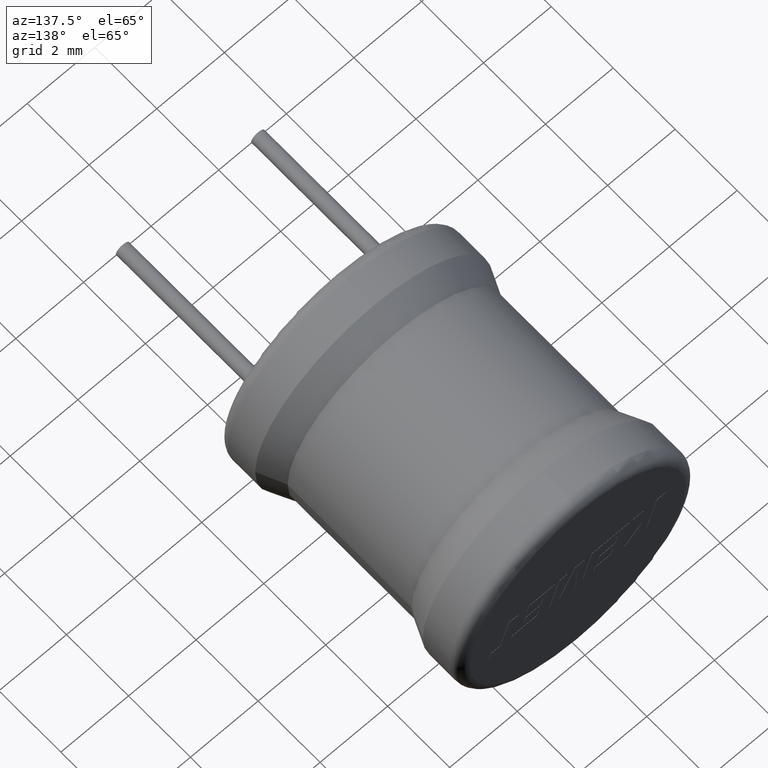
[diagram: clean part render]
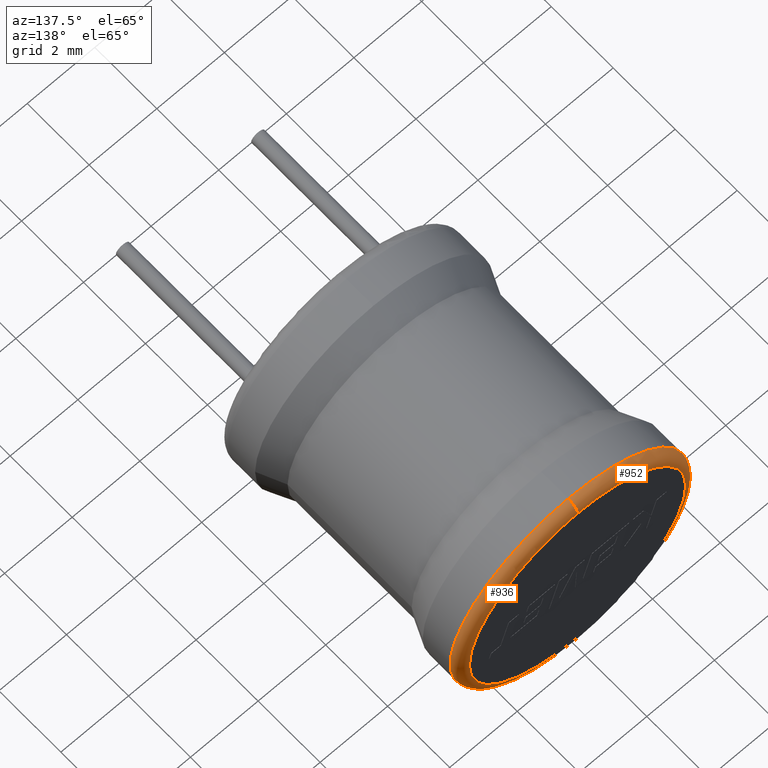
[diagram: same view with one multi-face feature highlighted, each face labeled with its STEP entity id]
A machine part, auxiliary view. The highlighted faces form ONE feature: a constant-radius fillet chain: 2 tangent blend faces with common blend radius 0.3 mm. The faces share edges in the B-rep.
Their STEP definitions:
[1] entity #936 (Torus):
#155 = ORIENTED_EDGE ( 'NONE', *, *, #2551, .F. ) ;
#165 = DIRECTION ( 'NONE',  ( 0.0000000000000000000, 1.000000000000000000, 0.0000000000000000000 ) ) ;
#222 = VERTEX_POINT ( 'NONE', #699 ) ;
#239 = DIRECTION ( 'NONE',  ( 1.224646799147353200E-016, 0.0000000000000000000, -1.000000000000000000 ) ) ;
#250 = ORIENTED_EDGE ( 'NONE', *, *, #1985, .F. ) ;
#251 = VERTEX_POINT ( 'NONE', #2278 ) ;
#296 = CARTESIAN_POINT ( 'NONE',  ( 0.0000000000000000000, 7.464800000000000300, 3.200000000000000200 ) ) ;
#363 = DIRECTION ( 'NONE',  ( -0.0000000000000000000, -1.000000000000000000, -0.0000000000000000000 ) ) ;
#372 = DIRECTION ( 'NONE',  ( 0.0000000000000000000, 1.000000000000000000, 0.0000000000000000000 ) ) ;
#406 = DIRECTION ( 'NONE',  ( 0.0000000000000000000, 0.0000000000000000000, 1.000000000000000000 ) ) ;
#431 = ORIENTED_EDGE ( 'NONE', *, *, #1304, .T. ) ;
#559 = CIRCLE ( 'NONE', #795, 3.200000000000000200 ) ;
#591 = CARTESIAN_POINT ( 'NONE',  ( 0.0000000000000000000, 7.764800000000000100, 0.0000000000000000000 ) ) ;
#699 = CARTESIAN_POINT ( 'NONE',  ( 4.286263797015735600E-016, 7.464800000000000300, 3.500000000000000000 ) ) ;
#795 = AXIS2_PLACEMENT_3D ( 'NONE', #591, #165, #406 ) ;
#936 = ADVANCED_FACE ( 'NONE', ( #2133 ), #2942, .T. ) ;
#1097 = CARTESIAN_POINT ( 'NONE',  ( 4.102566777143633300E-016, 7.764800000000000100, -3.200000000000000200 ) ) ;
#1137 = VERTEX_POINT ( 'NONE', #1776 ) ;
#1183 = VERTEX_POINT ( 'NONE', #1097 ) ;
#1200 = DIRECTION ( 'NONE',  ( 0.0000000000000000000, 0.0000000000000000000, 1.000000000000000000 ) ) ;
#1244 = DIRECTION ( 'NONE',  ( 0.0000000000000000000, 0.0000000000000000000, 1.000000000000000000 ) ) ;
#1299 = ORIENTED_EDGE ( 'NONE', *, *, #2351, .F. ) ;
#1304 = EDGE_CURVE ( 'NONE', #251, #1183, #2337, .T. ) ;
#1387 = DIRECTION ( 'NONE',  ( 1.000000000000000000, -0.0000000000000000000, 1.224646799147353200E-016 ) ) ;
#1776 = CARTESIAN_POINT ( 'NONE',  ( 0.0000000000000000000, 7.764800000000000100, 3.200000000000000200 ) ) ;
#1805 = AXIS2_PLACEMENT_3D ( 'NONE', #2815, #372, #1975 ) ;
#1840 = AXIS2_PLACEMENT_3D ( 'NONE', #2631, #363, #1244 ) ;
#1862 = EDGE_LOOP ( 'NONE', ( #250, #431, #1299, #155 ) ) ;
#1960 = CIRCLE ( 'NONE', #1840, 3.500000000000000000 ) ;
#1975 = DIRECTION ( 'NONE',  ( 0.0000000000000000000, 0.0000000000000000000, 1.000000000000000000 ) ) ;
#1985 = EDGE_CURVE ( 'NONE', #251, #222, #1960, .T. ) ;
#2066 = AXIS2_PLACEMENT_3D ( 'NONE', #2970, #1387, #239 ) ;
#2120 = DIRECTION ( 'NONE',  ( -1.000000000000000000, 0.0000000000000000000, 0.0000000000000000000 ) ) ;
#2133 = FACE_OUTER_BOUND ( 'NONE', #1862, .T. ) ;
#2278 = CARTESIAN_POINT ( 'NONE',  ( 0.0000000000000000000, 7.464800000000000300, -3.500000000000000000 ) ) ;
#2337 = CIRCLE ( 'NONE', #2066, 0.2999999999999999300 ) ;
#2351 = EDGE_CURVE ( 'NONE', #1137, #1183, #559, .T. ) ;
#2428 = AXIS2_PLACEMENT_3D ( 'NONE', #296, #2120, #1200 ) ;
#2551 = EDGE_CURVE ( 'NONE', #222, #1137, #2592, .T. ) ;
#2592 = CIRCLE ( 'NONE', #2428, 0.2999999999999999300 ) ;
#2631 = CARTESIAN_POINT ( 'NONE',  ( 0.0000000000000000000, 7.464800000000000300, 0.0000000000000000000 ) ) ;
#2815 = CARTESIAN_POINT ( 'NONE',  ( 0.0000000000000000000, 7.464800000000000300, 0.0000000000000000000 ) ) ;
#2942 = TOROIDAL_SURFACE ( 'NONE', #1805, 3.200000000000000200, 0.2999999999999999900 ) ;
#2970 = CARTESIAN_POINT ( 'NONE',  ( 3.918869757271530500E-016, 7.464800000000000300, -3.200000000000000200 ) ) ;
[2] entity #952 (Torus):
#68 = ORIENTED_EDGE ( 'NONE', *, *, #2502, .F. ) ;
#166 = EDGE_LOOP ( 'NONE', ( #727, #2462, #437, #68 ) ) ;
#222 = VERTEX_POINT ( 'NONE', #699 ) ;
#239 = DIRECTION ( 'NONE',  ( 1.224646799147353200E-016, 0.0000000000000000000, -1.000000000000000000 ) ) ;
#251 = VERTEX_POINT ( 'NONE', #2278 ) ;
#296 = CARTESIAN_POINT ( 'NONE',  ( 0.0000000000000000000, 7.464800000000000300, 3.200000000000000200 ) ) ;
#437 = ORIENTED_EDGE ( 'NONE', *, *, #2551, .T. ) ;
#588 = DIRECTION ( 'NONE',  ( -0.0000000000000000000, -1.000000000000000000, -0.0000000000000000000 ) ) ;
#699 = CARTESIAN_POINT ( 'NONE',  ( 4.286263797015735600E-016, 7.464800000000000300, 3.500000000000000000 ) ) ;
#727 = ORIENTED_EDGE ( 'NONE', *, *, #1304, .F. ) ;
#729 = CARTESIAN_POINT ( 'NONE',  ( 0.0000000000000000000, 7.764800000000000100, 0.0000000000000000000 ) ) ;
#764 = DIRECTION ( 'NONE',  ( 0.0000000000000000000, 0.0000000000000000000, 1.000000000000000000 ) ) ;
#952 = ADVANCED_FACE ( 'NONE', ( #2010 ), #2164, .T. ) ;
#1097 = CARTESIAN_POINT ( 'NONE',  ( 4.102566777143633300E-016, 7.764800000000000100, -3.200000000000000200 ) ) ;
#1137 = VERTEX_POINT ( 'NONE', #1776 ) ;
#1146 = DIRECTION ( 'NONE',  ( 0.0000000000000000000, 0.0000000000000000000, 1.000000000000000000 ) ) ;
#1183 = VERTEX_POINT ( 'NONE', #1097 ) ;
#1200 = DIRECTION ( 'NONE',  ( 0.0000000000000000000, 0.0000000000000000000, 1.000000000000000000 ) ) ;
#1304 = EDGE_CURVE ( 'NONE', #251, #1183, #2337, .T. ) ;
#1387 = DIRECTION ( 'NONE',  ( 1.000000000000000000, -0.0000000000000000000, 1.224646799147353200E-016 ) ) ;
#1641 = DIRECTION ( 'NONE',  ( 0.0000000000000000000, 1.000000000000000000, 0.0000000000000000000 ) ) ;
#1690 = AXIS2_PLACEMENT_3D ( 'NONE', #2172, #588, #2397 ) ;
#1706 = CARTESIAN_POINT ( 'NONE',  ( 0.0000000000000000000, 7.464800000000000300, 0.0000000000000000000 ) ) ;
#1776 = CARTESIAN_POINT ( 'NONE',  ( 0.0000000000000000000, 7.764800000000000100, 3.200000000000000200 ) ) ;
#1906 = DIRECTION ( 'NONE',  ( 0.0000000000000000000, 1.000000000000000000, 0.0000000000000000000 ) ) ;
#1968 = EDGE_CURVE ( 'NONE', #222, #251, #2430, .T. ) ;
#2010 = FACE_OUTER_BOUND ( 'NONE', #166, .T. ) ;
#2022 = AXIS2_PLACEMENT_3D ( 'NONE', #729, #1641, #1146 ) ;
#2066 = AXIS2_PLACEMENT_3D ( 'NONE', #2970, #1387, #239 ) ;
#2120 = DIRECTION ( 'NONE',  ( -1.000000000000000000, 0.0000000000000000000, 0.0000000000000000000 ) ) ;
#2132 = AXIS2_PLACEMENT_3D ( 'NONE', #1706, #1906, #764 ) ;
#2164 = TOROIDAL_SURFACE ( 'NONE', #2132, 3.200000000000000200, 0.2999999999999999900 ) ;
#2172 = CARTESIAN_POINT ( 'NONE',  ( 0.0000000000000000000, 7.464800000000000300, 0.0000000000000000000 ) ) ;
#2278 = CARTESIAN_POINT ( 'NONE',  ( 0.0000000000000000000, 7.464800000000000300, -3.500000000000000000 ) ) ;
#2337 = CIRCLE ( 'NONE', #2066, 0.2999999999999999300 ) ;
#2397 = DIRECTION ( 'NONE',  ( 0.0000000000000000000, 0.0000000000000000000, 1.000000000000000000 ) ) ;
#2428 = AXIS2_PLACEMENT_3D ( 'NONE', #296, #2120, #1200 ) ;
#2430 = CIRCLE ( 'NONE', #1690, 3.500000000000000000 ) ;
#2462 = ORIENTED_EDGE ( 'NONE', *, *, #1968, .F. ) ;
#2502 = EDGE_CURVE ( 'NONE', #1183, #1137, #2642, .T. ) ;
#2551 = EDGE_CURVE ( 'NONE', #222, #1137, #2592, .T. ) ;
#2592 = CIRCLE ( 'NONE', #2428, 0.2999999999999999300 ) ;
#2642 = CIRCLE ( 'NONE', #2022, 3.200000000000000200 ) ;
#2970 = CARTESIAN_POINT ( 'NONE',  ( 3.918869757271530500E-016, 7.464800000000000300, -3.200000000000000200 ) ) ;